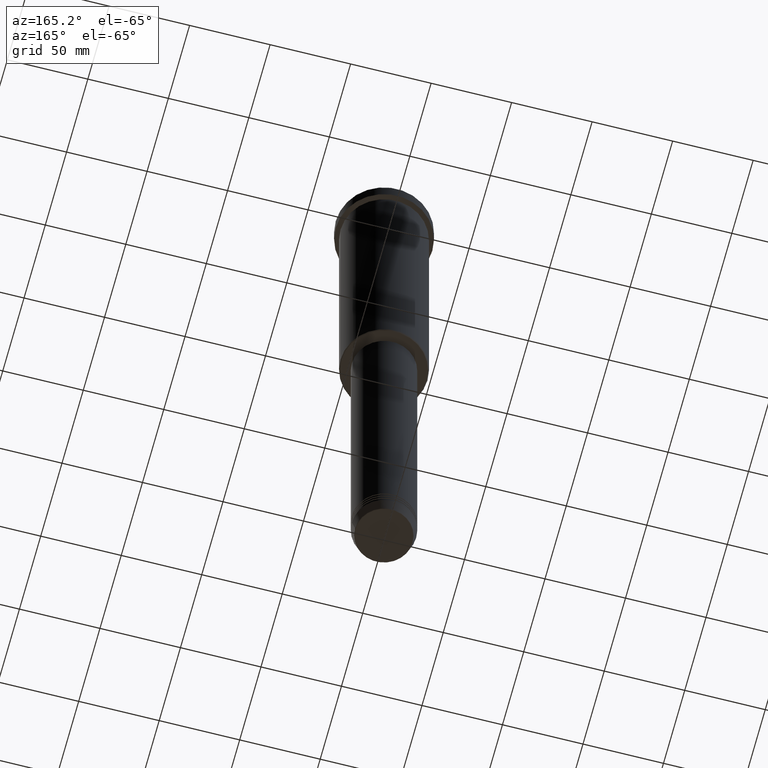
[diagram: clean part render]
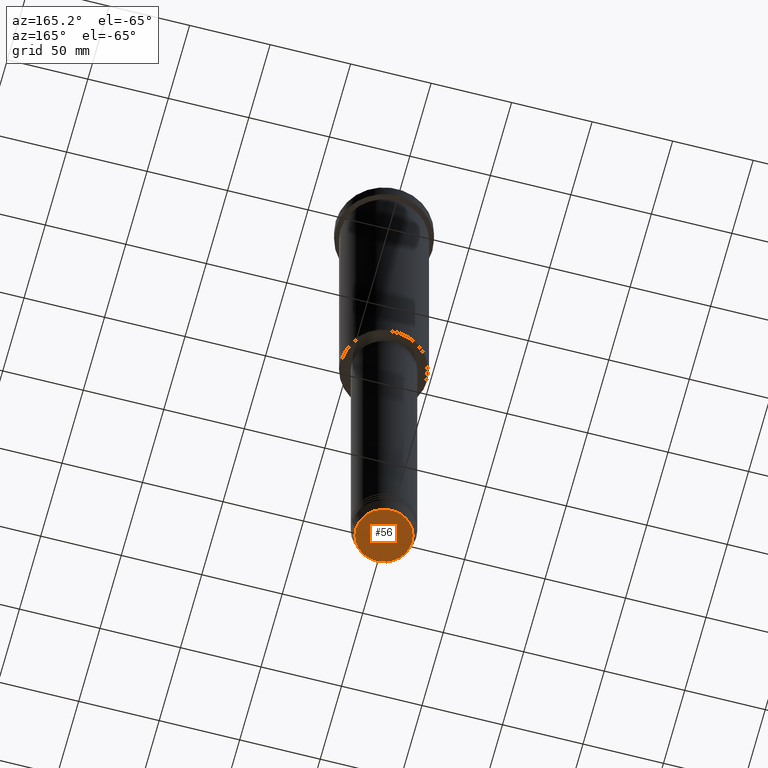
[diagram: same view with one face highlighted and labeled with its STEP entity id]
A machine part, auxiliary view. The second image highlights one B-rep face of the part: STEP entity #56.
In plain terms, the highlighted planar face has unit normal (0, -0, 1).
Its self-contained STEP definition (entity closure, byte-faithful):
#28 = ORIENTED_EDGE ( 'NONE', *, *, #168, .T. ) ;
#36 = EDGE_LOOP ( 'NONE', ( #497, #28 ) ) ;
#56 = ADVANCED_FACE ( 'NONE', ( #155 ), #62, .F. ) ;
#62 = PLANE ( 'NONE',  #797 ) ;
#73 = AXIS2_PLACEMENT_3D ( 'NONE', #860, #513, #867 ) ;
#155 = FACE_OUTER_BOUND ( 'NONE', #36, .T. ) ;
#168 = EDGE_CURVE ( 'NONE', #953, #822, #566, .T. ) ;
#178 = CIRCLE ( 'NONE', #73, 17.47274296656153680 ) ;
#294 = CARTESIAN_POINT ( 'NONE',  ( -17.47274296656153680, 2.169366823916867320E-15, -431.0000000000000000 ) ) ;
#315 = DIRECTION ( 'NONE',  ( 0.000000000000000000, 0.000000000000000000, -1.000000000000000000 ) ) ;
#345 = DIRECTION ( 'NONE',  ( 1.000000000000000000, 0.000000000000000000, 0.000000000000000000 ) ) ;
#401 = DIRECTION ( 'NONE',  ( 1.000000000000000000, 0.000000000000000000, 0.000000000000000000 ) ) ;
#429 = DIRECTION ( 'NONE',  ( 0.000000000000000000, -0.000000000000000000, 1.000000000000000000 ) ) ;
#497 = ORIENTED_EDGE ( 'NONE', *, *, #724, .T. ) ;
#513 = DIRECTION ( 'NONE',  ( 0.000000000000000000, 0.000000000000000000, -1.000000000000000000 ) ) ;
#517 = CARTESIAN_POINT ( 'NONE',  ( 0.000000000000000000, 0.000000000000000000, -431.0000000000000000 ) ) ;
#566 = CIRCLE ( 'NONE', #750, 17.47274296656153680 ) ;
#724 = EDGE_CURVE ( 'NONE', #822, #953, #178, .T. ) ;
#750 = AXIS2_PLACEMENT_3D ( 'NONE', #1127, #315, #401 ) ;
#797 = AXIS2_PLACEMENT_3D ( 'NONE', #517, #429, #345 ) ;
#822 = VERTEX_POINT ( 'NONE', #989 ) ;
#860 = CARTESIAN_POINT ( 'NONE',  ( 0.000000000000000000, 0.000000000000000000, -431.0000000000000000 ) ) ;
#867 = DIRECTION ( 'NONE',  ( 1.000000000000000000, 0.000000000000000000, 0.000000000000000000 ) ) ;
#953 = VERTEX_POINT ( 'NONE', #294 ) ;
#989 = CARTESIAN_POINT ( 'NONE',  ( 17.47274296656153680, 0.000000000000000000, -431.0000000000000000 ) ) ;
#1127 = CARTESIAN_POINT ( 'NONE',  ( 0.000000000000000000, 0.000000000000000000, -431.0000000000000000 ) ) ;